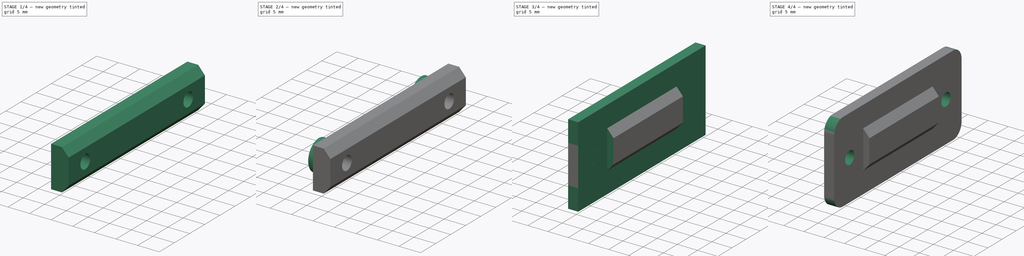
[diagram: build sequence overview — one tinted view per stage of 4, left to right]
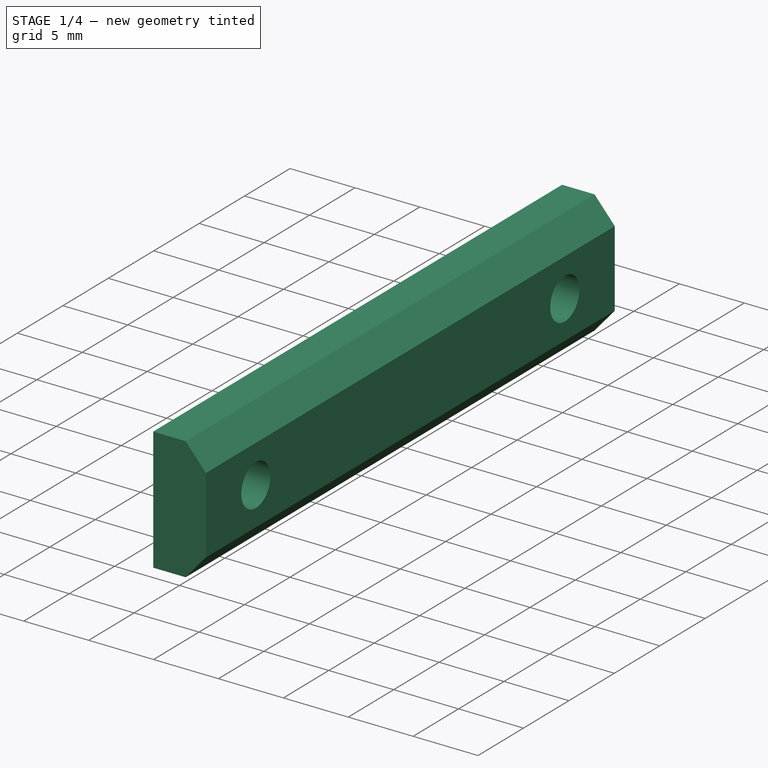
[diagram: stage 1 of 4 — iso view after this stage's code; geometry added in this stage tinted green]
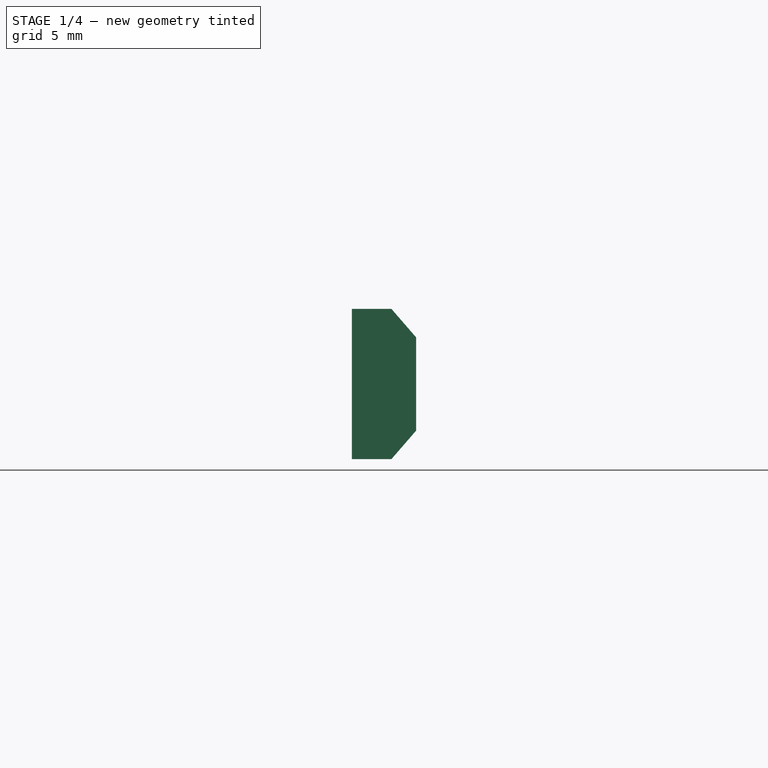
[diagram: stage 1 of 4 — front view after this stage's code; geometry added in this stage tinted green]
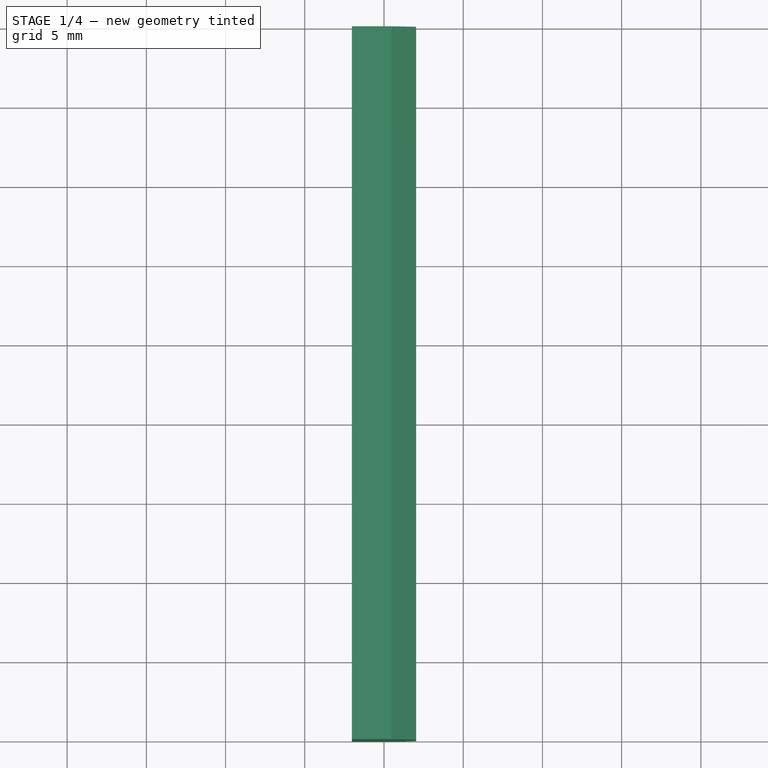
[diagram: stage 1 of 4 — top view after this stage's code; geometry added in this stage tinted green]
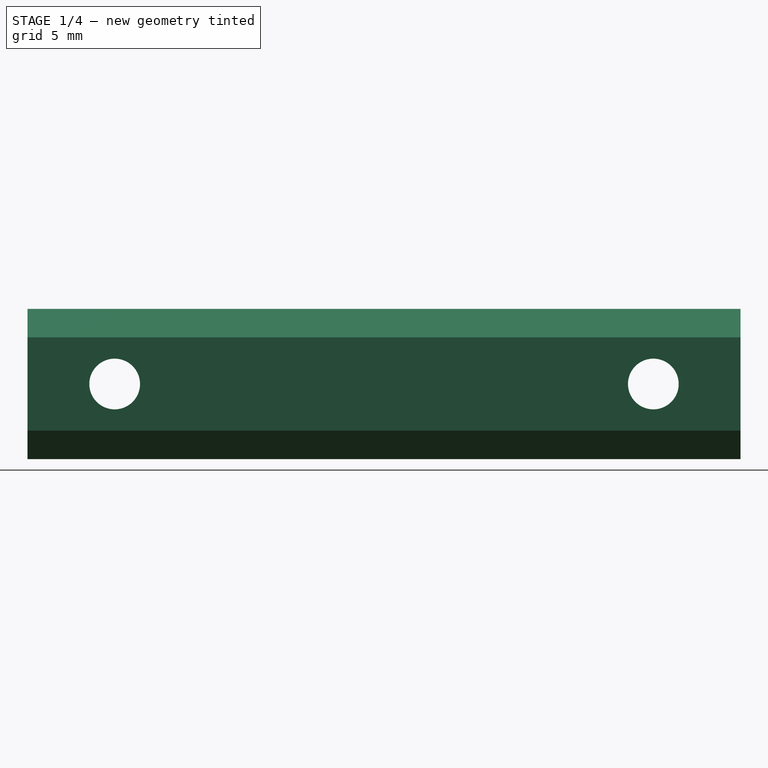
[diagram: stage 1 of 4 — right view after this stage's code; geometry added in this stage tinted green]
FCSTD DOCUMENT  (FreeCAD 0.21R33771 (Git))
Label: suporte-PECDR-W
License: All rights reserved
LicenseURL: https://en.wikipedia.org/wiki/All_rights_reserved
objects: Sketcher::SketchObject×5, PartDesign::Pocket×5, PartDesign::Pad×3, PartDesign::Fillet×1, PartDesign::Body×1
note: 24 computed .brp shape members not serialized (recipe doc carries the construction recipe); baked Part::Feature solids carry a one-line shape summary decoded from their .brp

FEATURE [Sketcher::SketchObject] Sketch
  FullyConstrained = true
  MapMode = 5
  Placement = pos=(0,0,0) rot=(1,0,0;1.5708rad)
  Support = -> [XZ_Plane]
  sketch-geometry (11):
    g0: LineSegment StartX=-2.03 StartY=4.74 StartZ=0 EndX=0.47 EndY=4.74 EndZ=0
    g1: LineSegment StartX=0.47 StartY=-4.74 StartZ=0 EndX=-2.03 EndY=-4.74 EndZ=0
    g2: LineSegment StartX=-2.03 StartY=-4.74 StartZ=0 EndX=-2.03 EndY=4.74 EndZ=0
    g3: LineSegment StartX=0.47 StartY=4.74 StartZ=0 EndX=2.03 EndY=2.94 EndZ=0
    g4: LineSegment StartX=2.03 StartY=2.94 StartZ=0 EndX=2.03 EndY=-2.94 EndZ=0
    g5: LineSegment StartX=2.03 StartY=-2.94 StartZ=0 EndX=0.47 EndY=-4.74 EndZ=0
    g6: LineSegment StartX=-2.03 StartY=4.74 StartZ=0 EndX=2.03 EndY=4.74 EndZ=0
    g7: LineSegment StartX=2.03 StartY=4.74 StartZ=0 EndX=2.03 EndY=-4.74 EndZ=0
    g8: LineSegment StartX=2.03 StartY=-4.74 StartZ=0 EndX=-2.03 EndY=-4.74 EndZ=0
    g9: LineSegment StartX=-2.03 StartY=-4.74 StartZ=0 EndX=-2.03 EndY=4.74 EndZ=0
    g10: LineSegment StartX=0.47 StartY=-4.74 StartZ=0 EndX=0.47 EndY=4.74 EndZ=0
  constraints (28):
    c: Coincident(g1,g2)
    c: Coincident(g2,g0)
    c: Horizontal(g0)
    c: Horizontal(g1)
    c: Vertical(g2)
    c: Coincident(g0,g3)
    c: Coincident(g3,g4)
    c: Coincident(g4,g5)
    c: Coincident(g5,g1)
    c: Symmetric(g4,g3,g-1)
    c: Coincident(g6,g7)
    c: Coincident(g7,g8)
    c: Coincident(g8,g9)
    c: Coincident(g9,g6)
    c: Horizontal(g8)
    c: Vertical(g9)
    c: Coincident(g6,g0)
    c: PointOnObject(g1,g8)
    c: PointOnObject(g4,g7)
    c: Symmetric(g6,g0,g-2)
    c: Symmetric(g6,g7,g-1)
    c: DistanceY(g2,g2) = 9.48
    c: DistanceX(g1,g4) = 1.56
    c: Coincident(g10,g1)
    c: Coincident(g10,g0)
    c: Vertical(g10)
    c: DistanceY(g4,g4) = 5.88
    c: DistanceX(g1,g1) = 2.5
FEATURE [PartDesign::Pad] Pad
  Direction = (0,-1,-2e-16)
  Length = 45
  Length2 = 10
  Placement = pos=(0,0,0) rot=(1,0,0;1.5708rad)
  Profile = -> Sketch
  ReferenceAxis = -> Sketch [N_Axis]
  Type = 0
FEATURE [Sketcher::SketchObject] Sketch001
  ExternalGeometry = -> [Pad]
  FullyConstrained = true
  MapMode = 5
  Placement = pos=(-2.03,0,0) rot=(0.707107,0,-0.707107;3.14159rad)
  Support = -> [Pad]
  sketch-geometry (3):
    g0: Circle CenterX=0 CenterY=39.5 CenterZ=0 NormalX=0 NormalY=0 NormalZ=1 AngleXU=0 Radius=1.6
    g1: Circle CenterX=7.4e-15 CenterY=5.5 CenterZ=0 NormalX=0 NormalY=0 NormalZ=1 AngleXU=0 Radius=1.6
    g2: LineSegment StartX=-4.74 StartY=22.5 StartZ=0 EndX=4.74 EndY=22.5 EndZ=0
  constraints (8):
    c: PointOnObject(g0,g-2)
    c: Symmetric(g0,g1,g2)
    c: Symmetric(g-3,g-3,g2)
    c: PointOnObject(g2,g-3)
    c: PointOnObject(g2,g-4)
    c: Equal(g0,g1)
    c: Diameter(g0) = 3.2
    c: DistanceY(g1,g0) = 34
FEATURE [PartDesign::Pocket] Pocket
  BaseFeature = -> Pad
  Direction = (1,0,2e-16)
  Length = 5
  Length2 = 5
  Placement = pos=(0,0,0) rot=(1,0,0;1.5708rad)
  Profile = -> Sketch001
  ReferenceAxis = -> Sketch001 [N_Axis]
  Type = 1
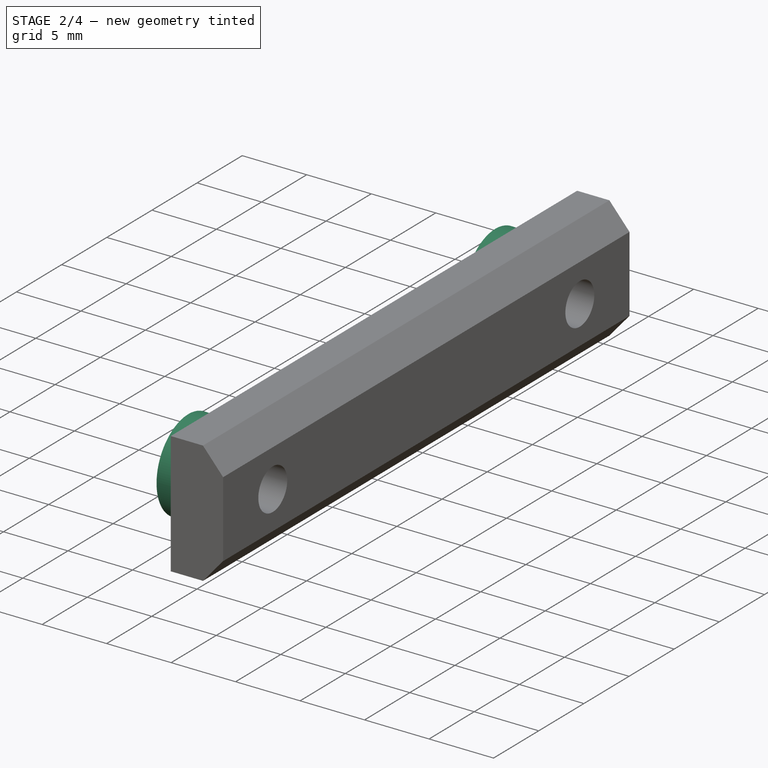
[diagram: stage 2 of 4 — iso view after this stage's code; geometry added in this stage tinted green]
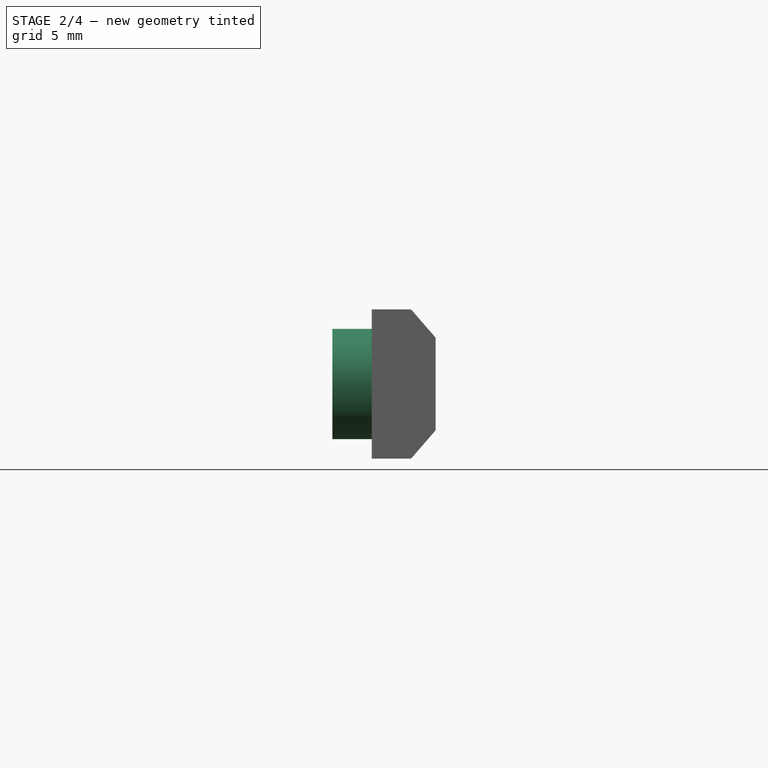
[diagram: stage 2 of 4 — front view after this stage's code; geometry added in this stage tinted green]
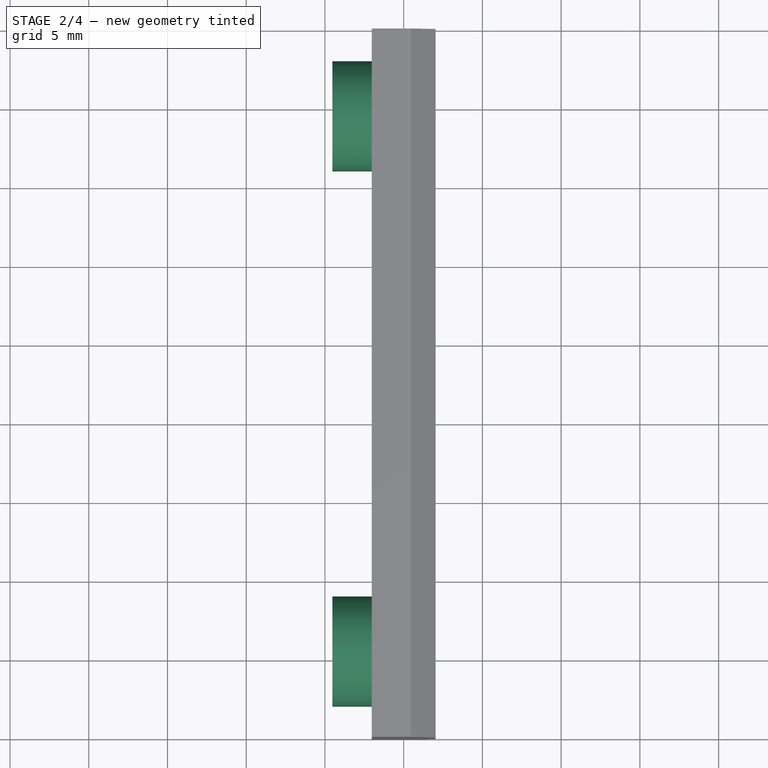
[diagram: stage 2 of 4 — top view after this stage's code; geometry added in this stage tinted green]
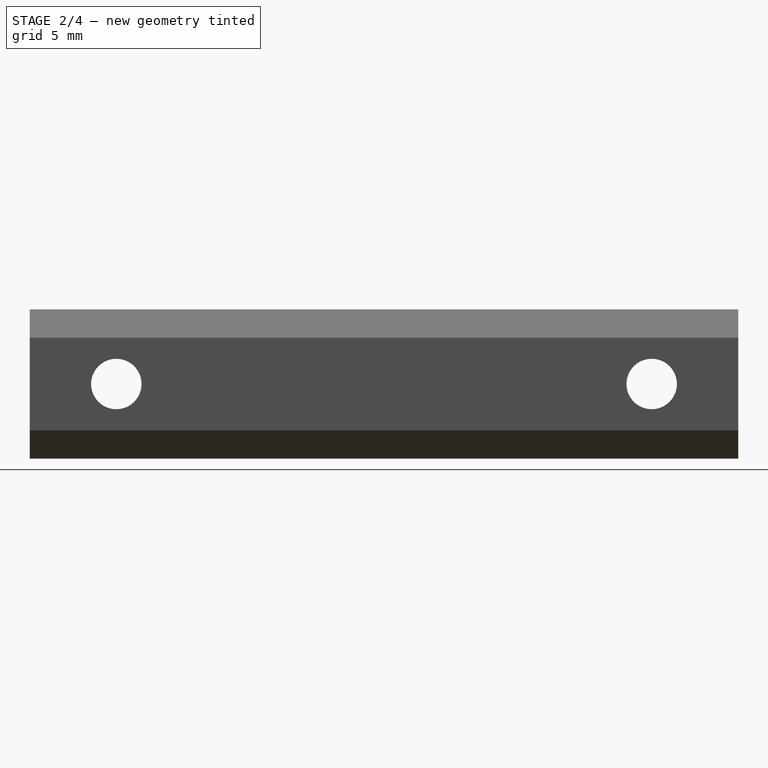
[diagram: stage 2 of 4 — right view after this stage's code; geometry added in this stage tinted green]
FEATURE [Sketcher::SketchObject] Sketch002
  ExternalGeometry = -> [Pocket]
  FullyConstrained = true
  MapMode = 5
  Placement = pos=(-2.03,0,0) rot=(0.707107,0,-0.707107;3.14159rad)
  Support = -> [Pocket]
  sketch-geometry (2):
    g0: Circle CenterX=0 CenterY=39.5 CenterZ=0 NormalX=0 NormalY=0 NormalZ=1 AngleXU=0 Radius=3.5
    g1: Circle CenterX=0 CenterY=5.5 CenterZ=0 NormalX=0 NormalY=0 NormalZ=1 AngleXU=0 Radius=3.5
  constraints (4):
    c: Coincident(g0,g-3)
    c: Coincident(g1,g-4)
    c: Equal(g0,g1)
    c: Diameter(g0) = 7
FEATURE [PartDesign::Pad] Pad001
  BaseFeature = -> Pocket
  Direction = (-1,0,-2e-16)
  Length = 2.5
  Length2 = 10
  Placement = pos=(0,0,0) rot=(1,0,0;1.5708rad)
  Profile = -> Sketch002
  ReferenceAxis = -> Sketch002 [N_Axis]
  Type = 0
FEATURE [PartDesign::Pocket] Pocket001
  BaseFeature = -> Pad001
  Direction = (-1,0,-3e-16)
  Length = 5
  Length2 = 5
  Placement = pos=(0,0,0) rot=(1,0,0;1.5708rad)
  Profile = -> Pad001 [Face16,Face15]
  Type = 1
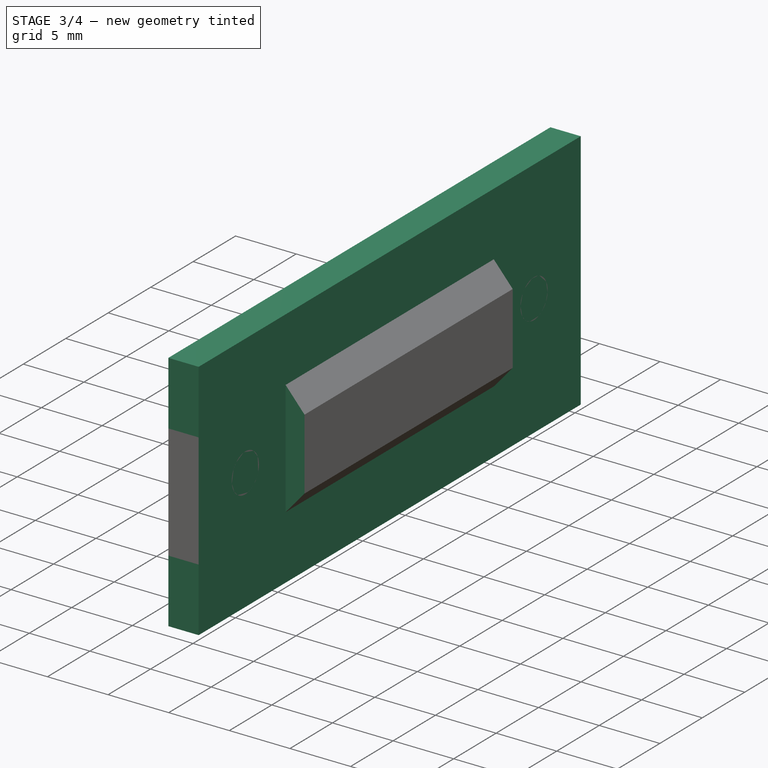
[diagram: stage 3 of 4 — iso view after this stage's code; geometry added in this stage tinted green]
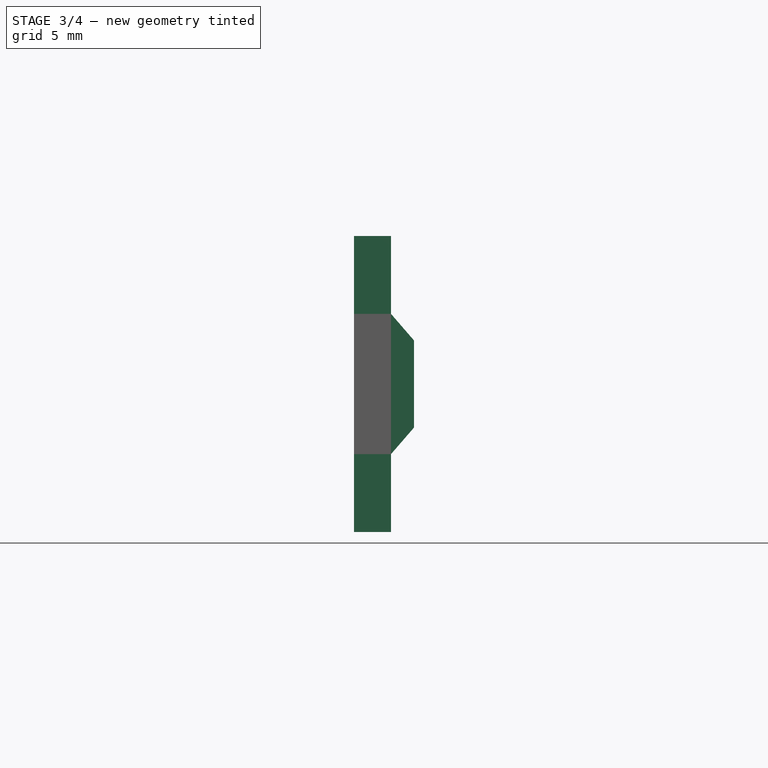
[diagram: stage 3 of 4 — front view after this stage's code; geometry added in this stage tinted green]
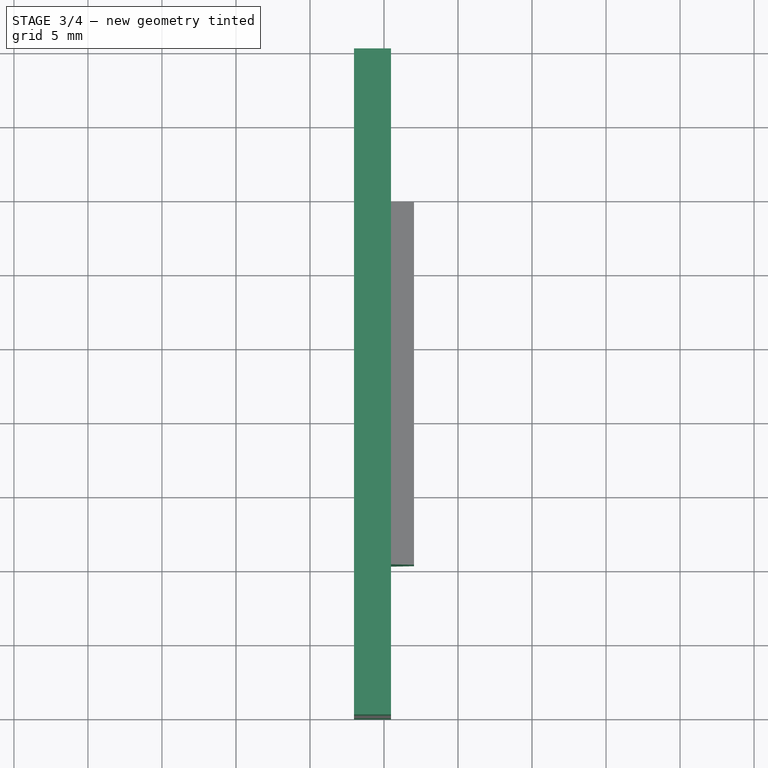
[diagram: stage 3 of 4 — top view after this stage's code; geometry added in this stage tinted green]
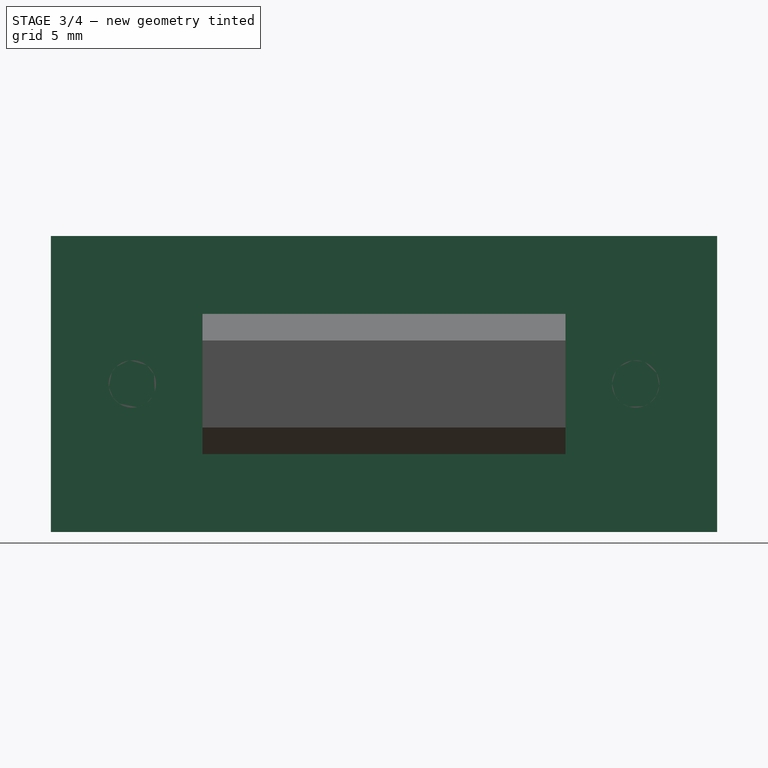
[diagram: stage 3 of 4 — right view after this stage's code; geometry added in this stage tinted green]
FEATURE [Sketcher::SketchObject] Sketch003
  ExternalGeometry = -> [Pocket001]
  FullyConstrained = true
  MapMode = 5
  Placement = pos=(2.03,0,0) rot=(0.707107,0,0.707107;3.14159rad)
  Support = -> [Pocket001]
  sketch-geometry (10):
    g0: Circle CenterX=6e-16 CenterY=39.5 CenterZ=0 NormalX=0 NormalY=0 NormalZ=1 AngleXU=0 Radius=4.74
    g1: Circle CenterX=-6.8e-15 CenterY=5.5 CenterZ=0 NormalX=0 NormalY=0 NormalZ=1 AngleXU=0 Radius=4.74
    g2: LineSegment StartX=-4.74 StartY=10.24 StartZ=0 EndX=4.74 EndY=10.24 EndZ=0
    g3: LineSegment StartX=4.74 StartY=10.24 StartZ=0 EndX=4.74 EndY=1.8e-15 EndZ=0
    g4: LineSegment StartX=4.74 StartY=1.8e-15 StartZ=0 EndX=-4.74 EndY=1.8e-15 EndZ=0
    g5: LineSegment StartX=-4.74 StartY=1.8e-15 StartZ=0 EndX=-4.74 EndY=10.24 EndZ=0
    g6: LineSegment StartX=-4.74 StartY=45 StartZ=0 EndX=4.74 EndY=45 EndZ=0
    g7: LineSegment StartX=4.74 StartY=45 StartZ=0 EndX=4.74 EndY=34.76 EndZ=0
    g8: LineSegment StartX=4.74 StartY=34.76 StartZ=0 EndX=-4.74 EndY=34.76 EndZ=0
    g9: LineSegment StartX=-4.74 StartY=34.76 StartZ=0 EndX=-4.74 EndY=45 EndZ=0
  constraints (28):
    c: Coincident(g0,g-3)
    c: Coincident(g1,g-4)
    c: Coincident(g2,g3)
    c: Coincident(g3,g4)
    c: Coincident(g4,g5)
    c: Coincident(g5,g2)
    c: Horizontal(g2)
    c: Horizontal(g4)
    c: Vertical(g3)
    c: Vertical(g5)
    c: Coincident(g6,g7)
    c: Coincident(g7,g8)
    c: Coincident(g8,g9)
    c: Coincident(g9,g6)
    c: Horizontal(g6)
    c: Horizontal(g8)
    c: Vertical(g7)
    c: Vertical(g9)
    c: Tangent(g8,g0)
    c: Tangent(g9,g0)
    c: Tangent(g7,g0)
    c: Tangent(g2,g1)
    c: Tangent(g1,g5)
    c: Tangent(g3,g1)
    c: Equal(g0,g1)
    c: PointOnObject(g8,g-5)
    c: PointOnObject(g-5,g6)
    c: PointOnObject(g-5,g4)
FEATURE [PartDesign::Pocket] Pocket002
  BaseFeature = -> Pocket001
  Direction = (-1,0,2e-16)
  Length = 1.56
  Length2 = 5
  Placement = pos=(0,0,0) rot=(1,0,0;1.5708rad)
  Profile = -> Sketch003
  ReferenceAxis = -> Sketch003 [N_Axis]
  Type = 0
FEATURE [PartDesign::Pocket] Pocket003
  BaseFeature = -> Pocket002
  Direction = (1,0,3e-16)
  Length = 0
  Length2 = 5
  Placement = pos=(0,0,0) rot=(1,0,0;1.5708rad)
  Profile = -> Pocket002 [Face17,Face18]
  Type = 3
  UpToFace = -> Pocket002 [Face2]
FEATURE [Sketcher::SketchObject] Sketch004
  ExternalGeometry = -> [Pocket003]
  FullyConstrained = true
  MapMode = 5
  Placement = pos=(-2.03,0,0) rot=(0.707107,0,-0.707107;3.14159rad)
  Support = -> [Pocket003]
  sketch-geometry (4):
    g0: LineSegment StartX=-10 StartY=45 StartZ=0 EndX=10 EndY=45 EndZ=0
    g1: LineSegment StartX=10 StartY=45 StartZ=0 EndX=10 EndY=0 EndZ=0
    g2: LineSegment StartX=10 StartY=0 StartZ=0 EndX=-10 EndY=0 EndZ=0
    g3: LineSegment StartX=-10 StartY=0 StartZ=0 EndX=-10 EndY=45 EndZ=0
  constraints (11):
    c: Coincident(g0,g1)
    c: Coincident(g1,g2)
    c: Coincident(g2,g3)
    c: Coincident(g3,g0)
    c: Horizontal(g2)
    c: Vertical(g1)
    c: Vertical(g3)
    c: Symmetric(g0,g0,g-2)
    c: PointOnObject(g-1,g2)
    c: PointOnObject(g-3,g0)
    c: DistanceX(g0,g0) = 20
FEATURE [PartDesign::Pad] Pad002
  BaseFeature = -> Pocket003
  Direction = (-1,0,-2e-16)
  Length = 10
  Length2 = 10
  Placement = pos=(0,0,0) rot=(1,0,0;1.5708rad)
  Profile = -> Sketch004
  ReferenceAxis = -> Sketch004 [N_Axis]
  Type = 3
  UpToFace = -> Pocket003 [Face5]
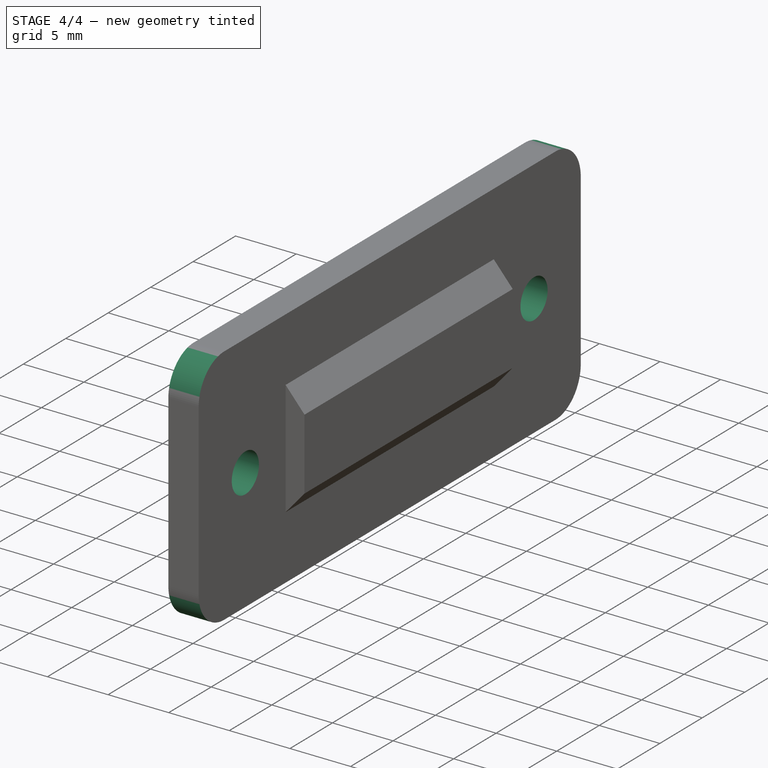
[diagram: stage 4 of 4 — iso view after this stage's code; geometry added in this stage tinted green]
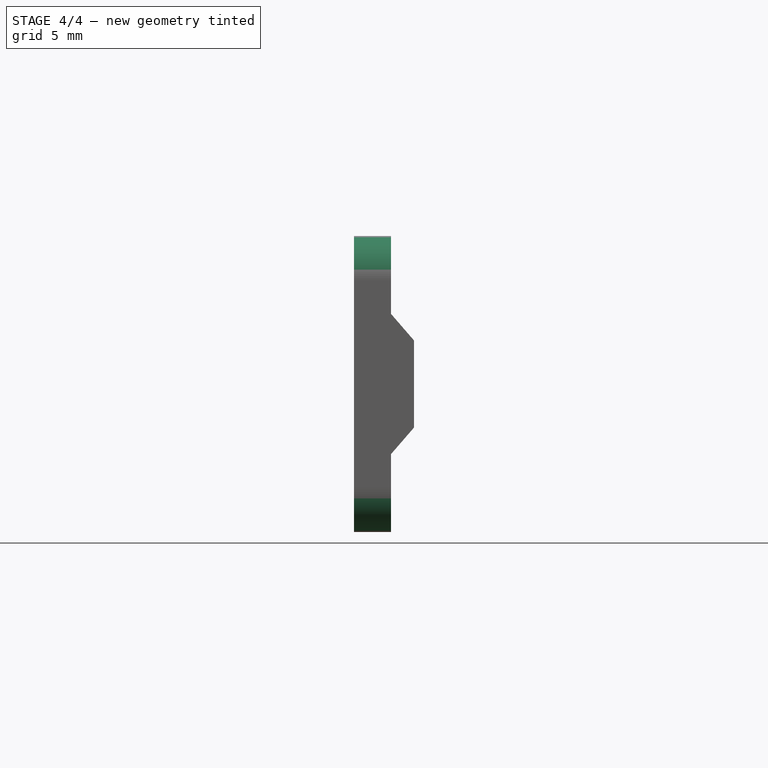
[diagram: stage 4 of 4 — front view after this stage's code; geometry added in this stage tinted green]
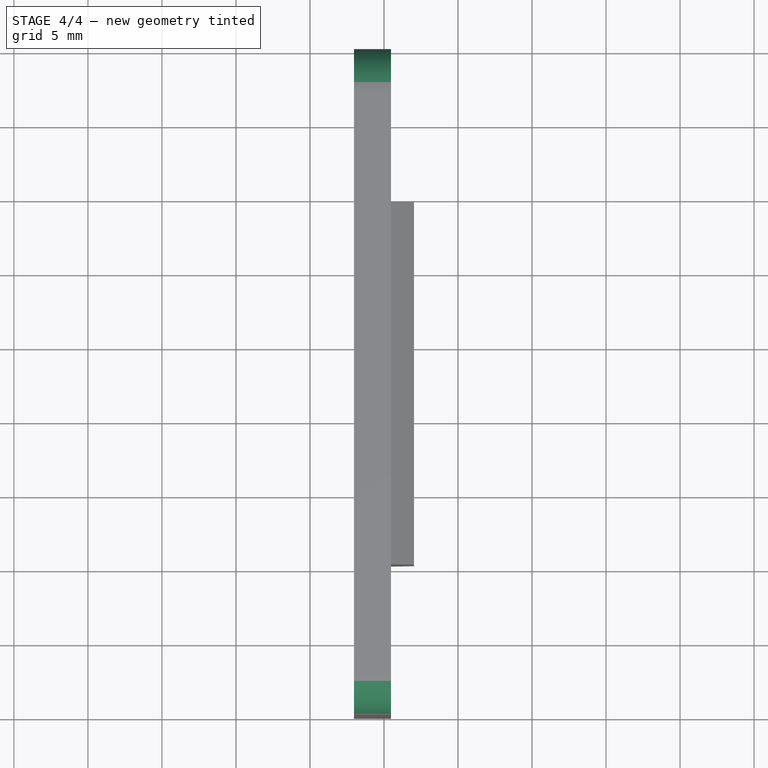
[diagram: stage 4 of 4 — top view after this stage's code; geometry added in this stage tinted green]
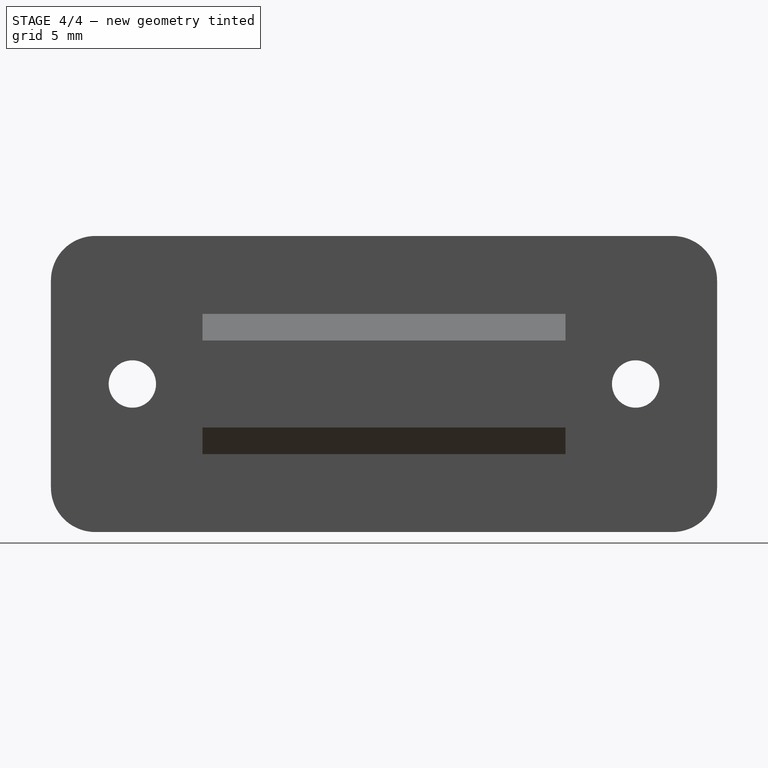
[diagram: stage 4 of 4 — right view after this stage's code; geometry added in this stage tinted green]
FEATURE [PartDesign::Pocket] Pocket004
  BaseFeature = -> Pad002
  Direction = (-1,0,2e-16)
  Length = 5
  Length2 = 5
  Placement = pos=(0,0,0) rot=(1,0,0;1.5708rad)
  Profile = -> Pad002 [Face23,Face21]
  Type = 1
FEATURE [PartDesign::Fillet] Fillet
  Base = -> Pocket004 [Edge22,Edge30,Edge24,Edge37]
  BaseFeature = -> Pocket004
  Placement = pos=(0,0,0) rot=(1,0,0;1.5708rad)
  Radius = 3
  SupportTransform = false
  UseAllEdges = false
FEATURE [PartDesign::Body] Body
  Group = -> [Sketch,Pad,Sketch001,Pocket,Sketch002,Pad001,Pocket001,Sketch003,Pocket002,Pocket003,Sketch004,Pad002,Pocket004,Fillet]
  Origin = -> Origin
  Tip = -> Fillet
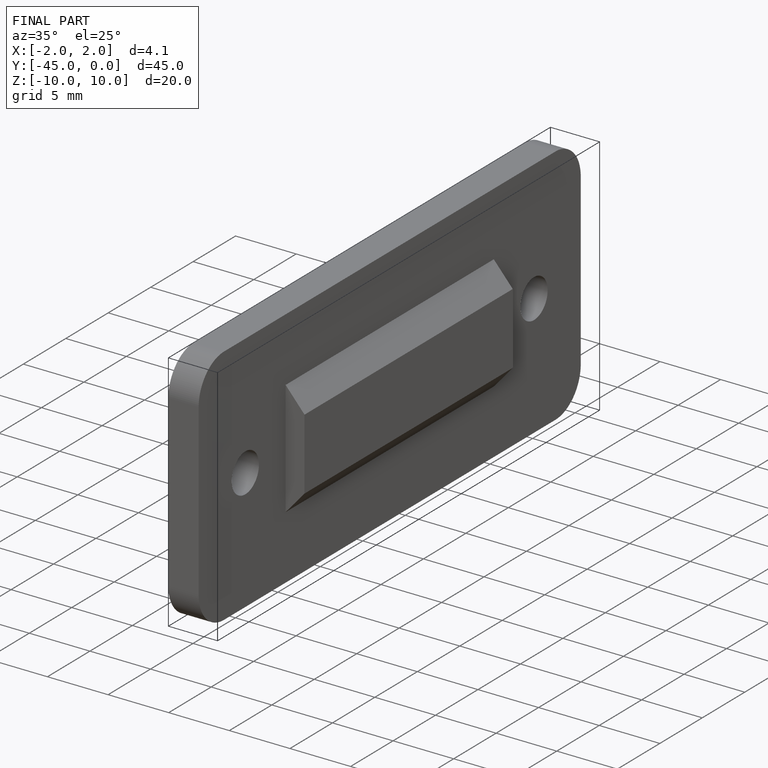
[diagram: finished part — iso view with bounding-box wireframe]
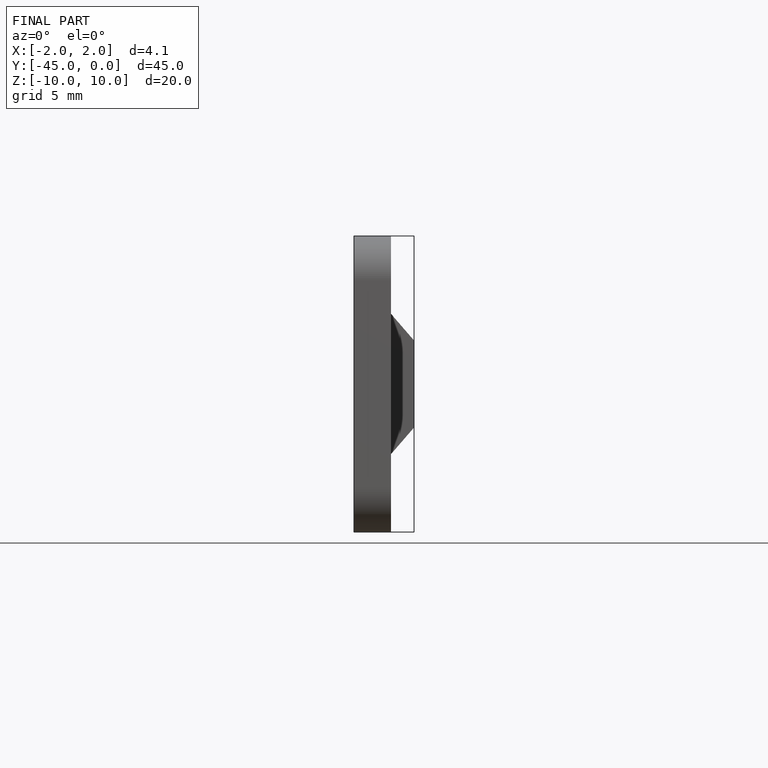
[diagram: finished part — front view with bounding-box wireframe]
